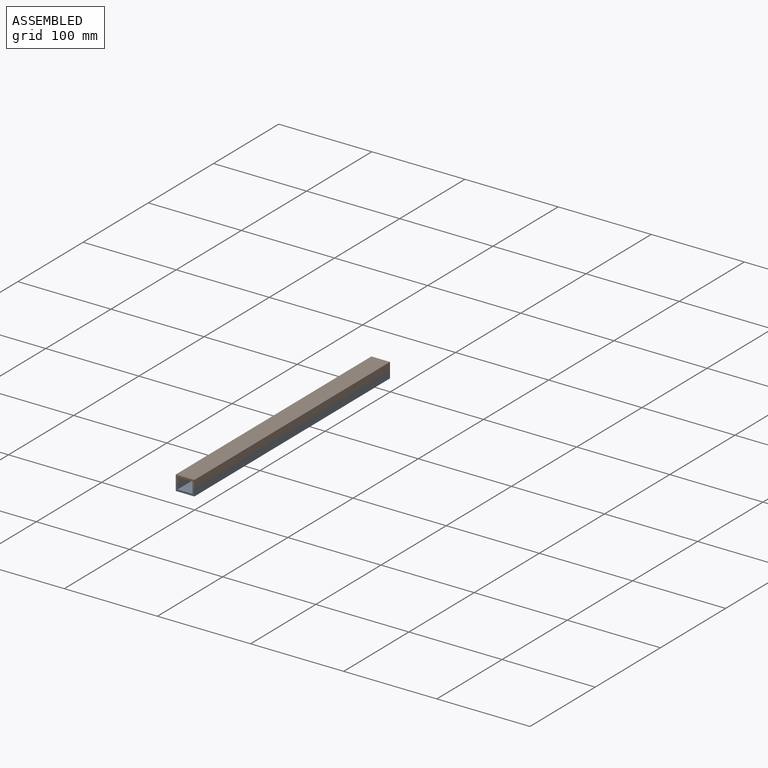
[diagram: assembled view]
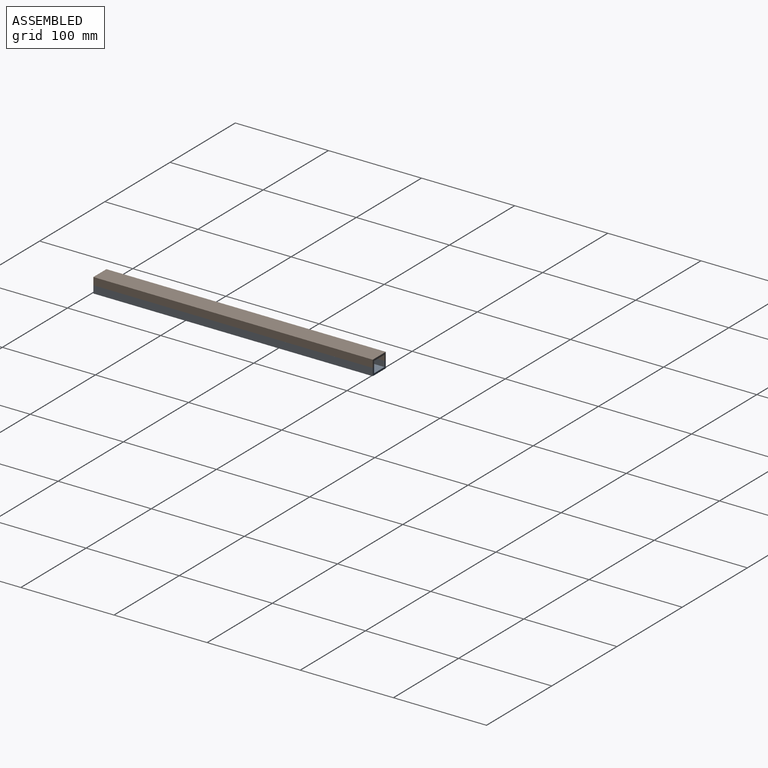
[diagram: assembled view, second angle]
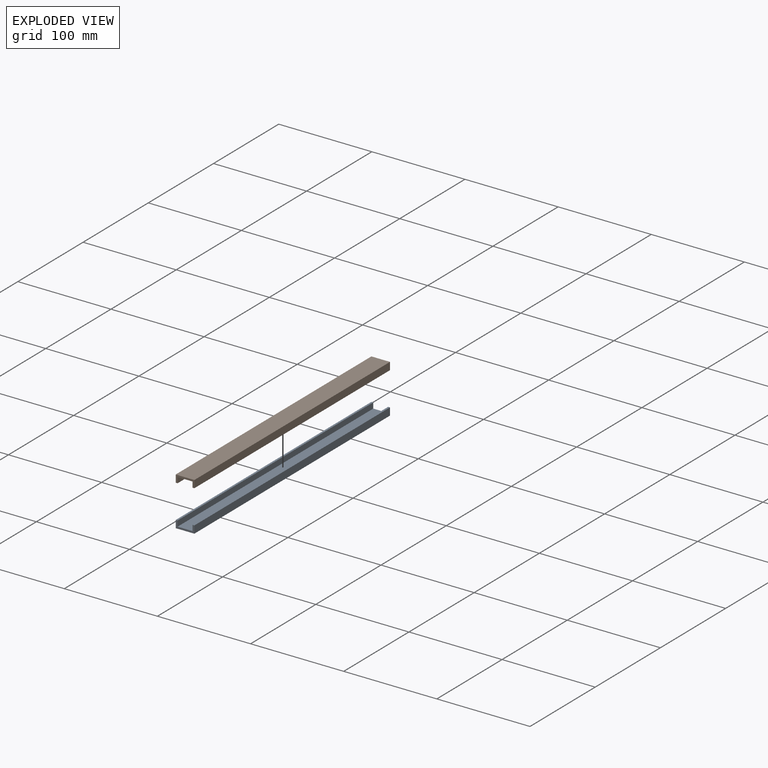
[diagram: exploded view]
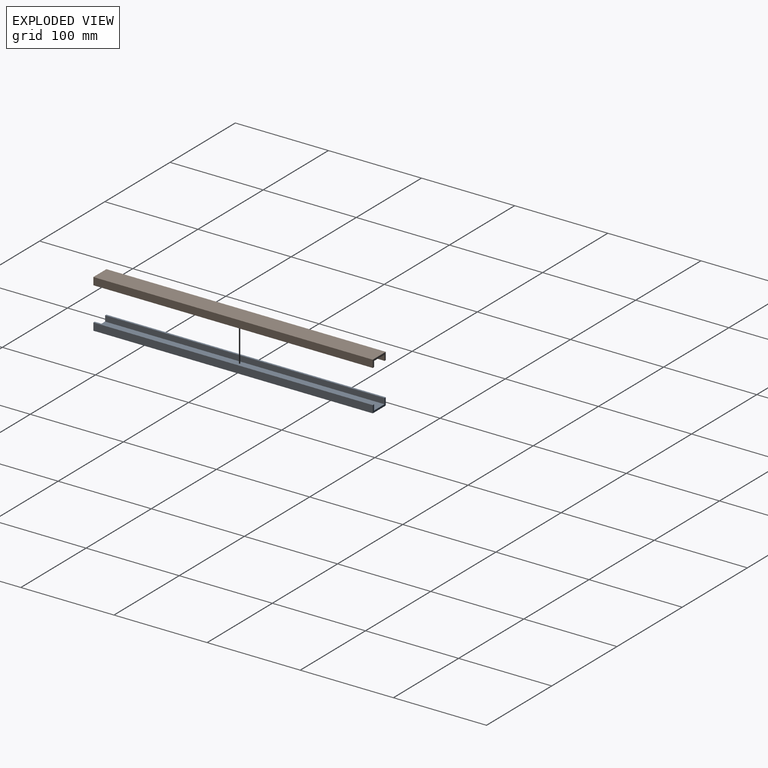
[diagram: exploded view, second angle]
ASSEMBLY  parts=2 mates=2
PART A: 10 faces, bbox 20x300x8 mm
  f0: plane 300x2mm, normal (0,0,1), area 600mm2, adj f1,f7,f8,f9
  f1: plane 300x6mm, normal (-1,0,0), area 1800mm2, adj f0,f2,f8,f9
  f2: plane 300x16mm, normal (0,0,1), area 4800mm2, adj f1,f3,f8,f9
  f3: plane 300x6mm, normal (1,0,0), area 1800mm2, adj f2,f4,f8,f9
  f4: plane 300x2mm, normal (0,0,1), area 600mm2, adj f3,f5,f8,f9
  f5: plane 300x8mm, normal (-1,0,0), area 2400mm2, adj f4,f6,f8,f9
  f6: plane 300x20mm, normal (0,0,-1), area 6000mm2, adj f5,f7,f8,f9
  f7: plane 300x8mm, normal (1,0,0), area 2400mm2, adj f0,f6,f8,f9
  f8: plane 20x8mm, normal (0,-1,0), area 64mm2, adj f0,f1,f2,f3,f4,f5,f6,f7
  f9: plane 20x8mm, normal (0,1,0), area 64mm2, adj f0,f1,f2,f3,f4,f5,f6,f7
PART B: same geometry as A
PLACE A rot(axis=(0,-1,0),0deg) t=(-17.93,151.36,33.98)mm
PLACE B rot(axis=(0,1,0),180deg) t=(-134.69,151.36,110.29)mm
MATE slider B.f8 <-> A.f8  axis (0,-1,0) through (-66.31,-148.64,72.13)mm
MATE parallel A.f8 <-> B.f8  axis (0,-1,0) through (-76.31,-148.64,66.63)mm
